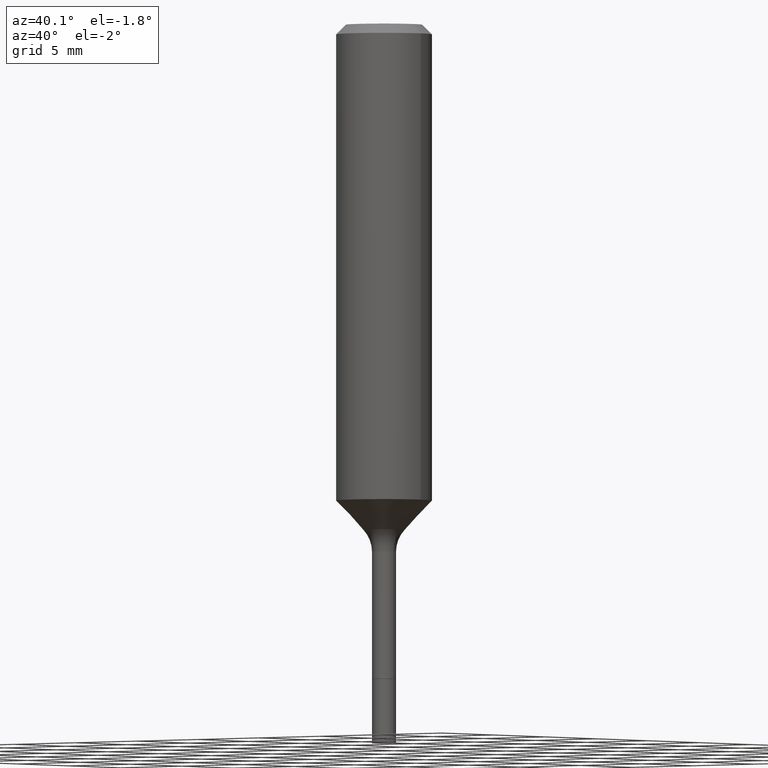
[diagram: clean part render]
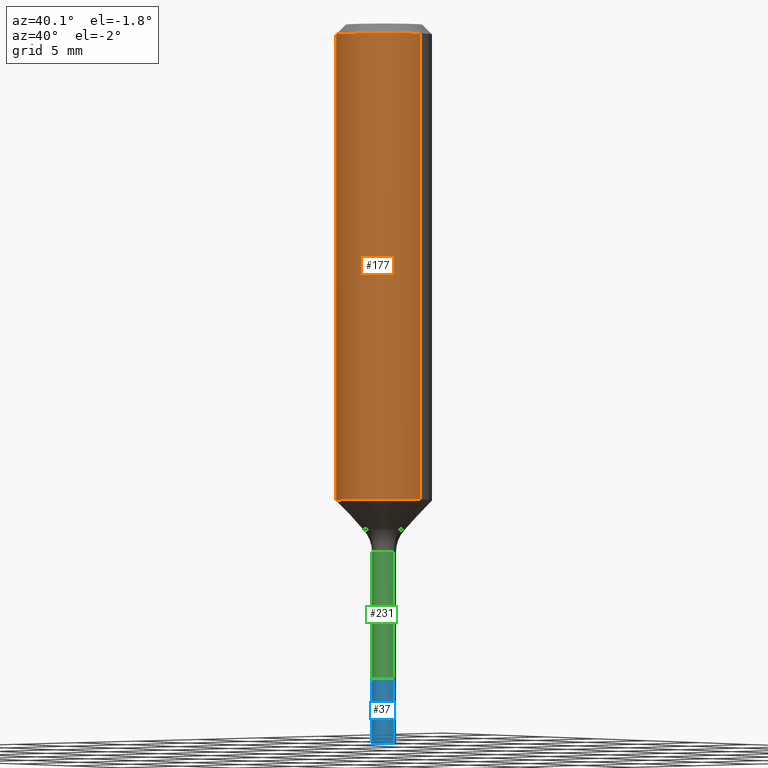
[diagram: same view with three faces highlighted in distinct colors, each labeled with its STEP entity id]
A machine part, auxiliary view with three faces highlighted in distinct colors.
Their STEP definitions:

[orange] entity #177 — the highlighted cylindrical surface (partial cylindrical patch) has radius 2.9997 mm, axis along (-0, 0, 1).
#14 = EDGE_CURVE ( 'NONE', #421, #333, #393, .T. ) ;
#20 = CYLINDRICAL_SURFACE ( 'NONE', #390, 0.1181000000000000660 ) ;
#35 = CIRCLE ( 'NONE', #322, 0.1181000000000001354 ) ;
#39 = CARTESIAN_POINT ( 'NONE',  ( -0.1181000000000000660, 8.391509709326787887E-16, -5.809262341591047287E-30 ) ) ;
#55 = VERTEX_POINT ( 'NONE', #309 ) ;
#61 = ORIENTED_EDGE ( 'NONE', *, *, #14, .F. ) ;
#62 = CARTESIAN_POINT ( 'NONE',  ( 5.776197320209326656E-31, -8.246878922347558061E-17, -0.02362000000000013741 ) ) ;
#71 = ORIENTED_EDGE ( 'NONE', *, *, #488, .T. ) ;
#142 = DIRECTION ( 'NONE',  ( 1.000000000000000000, -6.982962677686266711E-15, 4.876176775795936353E-29 ) ) ;
#177 = ADVANCED_FACE ( 'NONE', ( #361 ), #20, .T. ) ;
#192 = CIRCLE ( 'NONE', #341, 0.1180999999999999966 ) ;
#217 = EDGE_CURVE ( 'NONE', #333, #467, #192, .T. ) ;
#220 = DIRECTION ( 'NONE',  ( -2.445468806185136597E-29, 3.491481338843145583E-15, 1.000000000000000000 ) ) ;
#226 = DIRECTION ( 'NONE',  ( -2.445468806185136877E-29, 3.491481338843145188E-15, 1.000000000000000000 ) ) ;
#266 = ORIENTED_EDGE ( 'NONE', *, *, #217, .F. ) ;
#270 = CARTESIAN_POINT ( 'NONE',  ( 0.1180999999999999966, -9.071566814582237199E-16, -0.02362000000000013741 ) ) ;
#271 = EDGE_LOOP ( 'NONE', ( #61, #71, #498, #266 ) ) ;
#273 = VECTOR ( 'NONE', #494, 39.37007874015748143 ) ;
#307 = DIRECTION ( 'NONE',  ( 1.000000000000000000, -6.982962677686269077E-15, 0.000000000000000000 ) ) ;
#309 = CARTESIAN_POINT ( 'NONE',  ( 0.1181000000000001354, -4.920994747041635380E-15, -1.173228912678119018 ) ) ;
#315 = EDGE_CURVE ( 'NONE', #55, #467, #404, .T. ) ;
#322 = AXIS2_PLACEMENT_3D ( 'NONE', #476, #440, #307 ) ;
#324 = CARTESIAN_POINT ( 'NONE',  ( 0.1181000000000000660, -8.246878922347485584E-16, 5.758764772215003944E-30 ) ) ;
#333 = VERTEX_POINT ( 'NONE', #340 ) ;
#339 = VECTOR ( 'NONE', #226, 39.37007874015748143 ) ;
#340 = CARTESIAN_POINT ( 'NONE',  ( -0.1180999999999999966, -1.250236851082501907E-15, -0.02362000000000013741 ) ) ;
#341 = AXIS2_PLACEMENT_3D ( 'NONE', #62, #220, #434 ) ;
#361 = FACE_OUTER_BOUND ( 'NONE', #271, .T. ) ;
#390 = AXIS2_PLACEMENT_3D ( 'NONE', #461, #503, #142 ) ;
#393 = LINE ( 'NONE', #39, #339 ) ;
#404 = LINE ( 'NONE', #324, #273 ) ;
#421 = VERTEX_POINT ( 'NONE', #506 ) ;
#434 = DIRECTION ( 'NONE',  ( 1.000000000000000000, -6.982962677686266711E-15, 0.000000000000000000 ) ) ;
#440 = DIRECTION ( 'NONE',  ( -2.445468806185136597E-29, 3.491481338843145583E-15, 1.000000000000000000 ) ) ;
#461 = CARTESIAN_POINT ( 'NONE',  ( 0.000000000000000000, 0.000000000000000000, 0.000000000000000000 ) ) ;
#467 = VERTEX_POINT ( 'NONE', #270 ) ;
#476 = CARTESIAN_POINT ( 'NONE',  ( 2.869094708468846094E-29, -4.096306854806887117E-15, -1.173228912678119018 ) ) ;
#488 = EDGE_CURVE ( 'NONE', #421, #55, #35, .T. ) ;
#494 = DIRECTION ( 'NONE',  ( -2.445468806185136877E-29, 3.491481338843145188E-15, 1.000000000000000000 ) ) ;
#498 = ORIENTED_EDGE ( 'NONE', *, *, #315, .T. ) ;
#503 = DIRECTION ( 'NONE',  ( -2.445468806185136597E-29, 3.491481338843145583E-15, 1.000000000000000000 ) ) ;
#506 = CARTESIAN_POINT ( 'NONE',  ( -0.1181000000000001354, -3.257155883874207737E-15, -1.173228912678119018 ) ) ;

[blue] entity #37 — the highlighted cylindrical surface (edge-blend (fillet) strip) has radius 0.7506 mm, axis along (-0, 0, 1).
#12 = DIRECTION ( 'NONE',  ( -2.445468806185136597E-29, 3.491481338843145583E-15, 1.000000000000000000 ) ) ;
#16 = DIRECTION ( 'NONE',  ( -2.445468806185136877E-29, 3.491481338843145188E-15, 1.000000000000000000 ) ) ;
#37 = ADVANCED_FACE ( 'NONE', ( #269 ), #435, .T. ) ;
#40 = VERTEX_POINT ( 'NONE', #355 ) ;
#49 = VECTOR ( 'NONE', #343, 39.37007874015748143 ) ;
#54 = DIRECTION ( 'NONE',  ( -2.445468806185136597E-29, 3.491481338843145583E-15, 1.000000000000000000 ) ) ;
#65 = VERTEX_POINT ( 'NONE', #75 ) ;
#68 = CARTESIAN_POINT ( 'NONE',  ( 3.946253012540954589E-29, -5.634203436491183865E-15, -1.613699999999999690 ) ) ;
#72 = AXIS2_PLACEMENT_3D ( 'NONE', #484, #12, #137 ) ;
#75 = CARTESIAN_POINT ( 'NONE',  ( -0.02954999999999996171, -5.700065083842683116E-15, -1.613699999999999690 ) ) ;
#76 = VERTEX_POINT ( 'NONE', #85 ) ;
#85 = CARTESIAN_POINT ( 'NONE',  ( 0.02954999999999996171, -6.392204035154029903E-15, -1.771700000000000053 ) ) ;
#88 = EDGE_CURVE ( 'NONE', #65, #504, #479, .T. ) ;
#90 = AXIS2_PLACEMENT_3D ( 'NONE', #68, #349, #313 ) ;
#92 = AXIS2_PLACEMENT_3D ( 'NONE', #368, #54, #130 ) ;
#130 = DIRECTION ( 'NONE',  ( 1.000000000000000000, -6.982962677686271444E-15, 0.000000000000000000 ) ) ;
#137 = DIRECTION ( 'NONE',  ( 1.000000000000000000, -6.982962677686271444E-15, 0.000000000000000000 ) ) ;
#173 = VECTOR ( 'NONE', #16, 39.37007874015748143 ) ;
#195 = LINE ( 'NONE', #386, #49 ) ;
#219 = ORIENTED_EDGE ( 'NONE', *, *, #88, .F. ) ;
#222 = EDGE_CURVE ( 'NONE', #76, #504, #195, .T. ) ;
#250 = ORIENTED_EDGE ( 'NONE', *, *, #286, .T. ) ;
#251 = CARTESIAN_POINT ( 'NONE',  ( -0.02954999999999996171, -5.424238058074074508E-15, -1.613699999999999690 ) ) ;
#269 = FACE_OUTER_BOUND ( 'NONE', #373, .T. ) ;
#278 = CIRCLE ( 'NONE', #92, 0.02954999999999996171 ) ;
#283 = EDGE_CURVE ( 'NONE', #40, #65, #413, .T. ) ;
#286 = EDGE_CURVE ( 'NONE', #40, #76, #278, .T. ) ;
#313 = DIRECTION ( 'NONE',  ( 1.000000000000000000, -6.982962677686271444E-15, 0.000000000000000000 ) ) ;
#314 = CARTESIAN_POINT ( 'NONE',  ( 0.02954999999999996171, -5.840549983616812687E-15, -1.613699999999999690 ) ) ;
#343 = DIRECTION ( 'NONE',  ( -2.445468806185136877E-29, 3.491481338843145188E-15, 1.000000000000000000 ) ) ;
#349 = DIRECTION ( 'NONE',  ( -2.445468806185136597E-29, 3.491481338843145583E-15, 1.000000000000000000 ) ) ;
#355 = CARTESIAN_POINT ( 'NONE',  ( -0.02954999999999996171, -5.700065083842683116E-15, -1.771700000000000053 ) ) ;
#368 = CARTESIAN_POINT ( 'NONE',  ( 4.332637083918206427E-29, -6.185857488028401081E-15, -1.771700000000000053 ) ) ;
#373 = EDGE_LOOP ( 'NONE', ( #378, #250, #515, #219 ) ) ;
#378 = ORIENTED_EDGE ( 'NONE', *, *, #283, .F. ) ;
#386 = CARTESIAN_POINT ( 'NONE',  ( 0.02954999999999996171, -5.840549983616812687E-15, -1.613699999999999690 ) ) ;
#413 = LINE ( 'NONE', #251, #173 ) ;
#435 = CYLINDRICAL_SURFACE ( 'NONE', #90, 0.02954999999999996171 ) ;
#479 = CIRCLE ( 'NONE', #72, 0.02954999999999996171 ) ;
#484 = CARTESIAN_POINT ( 'NONE',  ( 3.946253012540954589E-29, -5.634203436491183865E-15, -1.613699999999999690 ) ) ;
#504 = VERTEX_POINT ( 'NONE', #314 ) ;
#515 = ORIENTED_EDGE ( 'NONE', *, *, #222, .T. ) ;

[green] entity #231 — the highlighted cylindrical surface (edge-blend (fillet) strip) has radius 0.7506 mm, axis along (-0, 0, 1).
#21 = ORIENTED_EDGE ( 'NONE', *, *, #459, .T. ) ;
#57 = CIRCLE ( 'NONE', #295, 0.02954999999999992355 ) ;
#70 = EDGE_CURVE ( 'NONE', #188, #189, #398, .T. ) ;
#77 = CARTESIAN_POINT ( 'NONE',  ( 0.02954999999999973967, -2.063465471256273918E-16, 1.440910237247686459E-30 ) ) ;
#79 = DIRECTION ( 'NONE',  ( 1.000000000000000000, -6.982962677686269077E-15, 0.000000000000000000 ) ) ;
#135 = CARTESIAN_POINT ( 'NONE',  ( 3.178375807398822119E-29, -4.537878296094436237E-15, -1.299700000000000077 ) ) ;
#147 = CARTESIAN_POINT ( 'NONE',  ( 0.02954999999999992355, -4.744224843220065059E-15, -1.299700000000000077 ) ) ;
#159 = ORIENTED_EDGE ( 'NONE', *, *, #190, .F. ) ;
#178 = AXIS2_PLACEMENT_3D ( 'NONE', #451, #443, #79 ) ;
#188 = VERTEX_POINT ( 'NONE', #507 ) ;
#189 = VERTEX_POINT ( 'NONE', #198 ) ;
#190 = EDGE_CURVE ( 'NONE', #188, #234, #354, .T. ) ;
#191 = ORIENTED_EDGE ( 'NONE', *, *, #70, .T. ) ;
#198 = CARTESIAN_POINT ( 'NONE',  ( 0.02954999999999955232, -5.838804242947389606E-15, -1.613200000000000189 ) ) ;
#214 = AXIS2_PLACEMENT_3D ( 'NONE', #408, #367, #416 ) ;
#221 = ORIENTED_EDGE ( 'NONE', *, *, #326, .F. ) ;
#228 = DIRECTION ( 'NONE',  ( -2.445468806185136877E-29, 3.491481338843145188E-15, 1.000000000000000000 ) ) ;
#230 = VECTOR ( 'NONE', #228, 39.37007874015748143 ) ;
#231 = ADVANCED_FACE ( 'NONE', ( #265 ), #351, .T. ) ;
#234 = VERTEX_POINT ( 'NONE', #363 ) ;
#265 = FACE_OUTER_BOUND ( 'NONE', #382, .T. ) ;
#293 = DIRECTION ( 'NONE',  ( -2.445468806185136597E-29, 3.491481338843145583E-15, 1.000000000000000000 ) ) ;
#295 = AXIS2_PLACEMENT_3D ( 'NONE', #135, #293, #426 ) ;
#320 = CARTESIAN_POINT ( 'NONE',  ( -0.02954999999999973967, 2.099653784171077552E-16, -1.453545319170311939E-30 ) ) ;
#326 = EDGE_CURVE ( 'NONE', #234, #375, #57, .T. ) ;
#351 = CYLINDRICAL_SURFACE ( 'NONE', #214, 0.02954999999999973967 ) ;
#354 = LINE ( 'NONE', #320, #230 ) ;
#363 = CARTESIAN_POINT ( 'NONE',  ( -0.02954999999999992355, -4.875202617540993886E-15, -1.299700000000000077 ) ) ;
#367 = DIRECTION ( 'NONE',  ( -2.445468806185136597E-29, 3.491481338843145583E-15, 1.000000000000000000 ) ) ;
#375 = VERTEX_POINT ( 'NONE', #147 ) ;
#382 = EDGE_LOOP ( 'NONE', ( #159, #191, #21, #221 ) ) ;
#388 = LINE ( 'NONE', #77, #458 ) ;
#398 = CIRCLE ( 'NONE', #178, 0.02954999999999955232 ) ;
#408 = CARTESIAN_POINT ( 'NONE',  ( 0.000000000000000000, 0.000000000000000000, 0.000000000000000000 ) ) ;
#416 = DIRECTION ( 'NONE',  ( 1.000000000000000000, -6.982962677686267499E-15, 4.876176775795936353E-29 ) ) ;
#426 = DIRECTION ( 'NONE',  ( 1.000000000000000000, -6.982962677686280121E-15, 0.000000000000000000 ) ) ;
#443 = DIRECTION ( 'NONE',  ( -2.445468806185136597E-29, 3.491481338843145583E-15, 1.000000000000000000 ) ) ;
#451 = CARTESIAN_POINT ( 'NONE',  ( 3.945030278137862348E-29, -5.632457695821763151E-15, -1.613200000000000189 ) ) ;
#458 = VECTOR ( 'NONE', #518, 39.37007874015748143 ) ;
#459 = EDGE_CURVE ( 'NONE', #189, #375, #388, .T. ) ;
#507 = CARTESIAN_POINT ( 'NONE',  ( -0.02954999999999955232, -4.875202617540993886E-15, -1.613200000000000189 ) ) ;
#518 = DIRECTION ( 'NONE',  ( -2.445468806185136877E-29, 3.491481338843145188E-15, 1.000000000000000000 ) ) ;